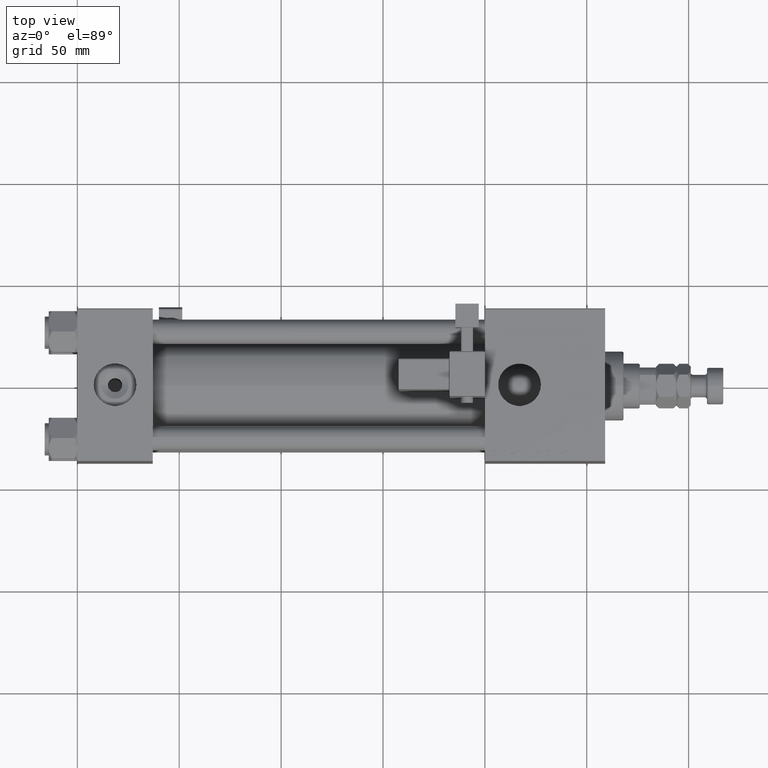
[diagram: clean part render]
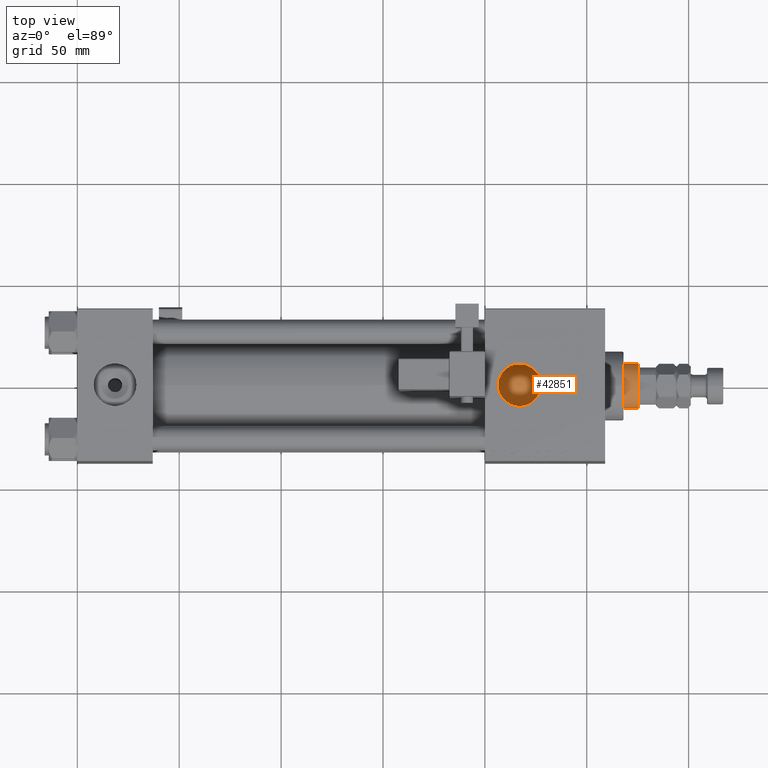
[diagram: same view with one face highlighted and labeled with its STEP entity id]
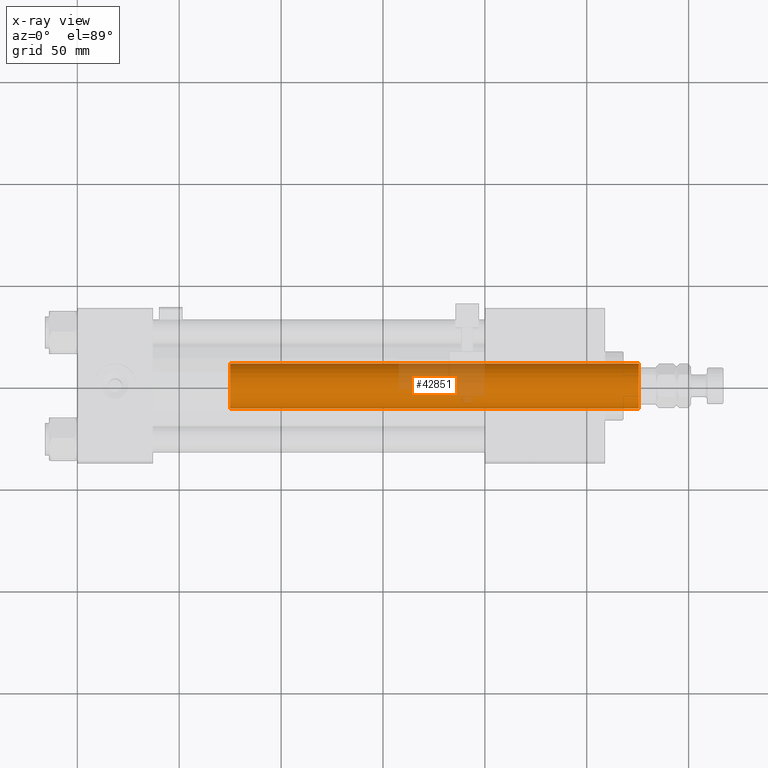
[diagram: x-ray of the same camera — body ghosted, the highlighted face saturated]
A machine part, top view. The second image highlights one B-rep face of the part: STEP entity #42851.
The next image is the same camera in x-ray: the body ghosted, the highlighted face saturated — about 14% of this face is hidden behind the body in this view.
In plain terms, the highlighted cylindrical surface (edge-blend (fillet) strip) has radius 11 mm, axis along (-1, 0, 0).
Its self-contained STEP definition (entity closure, byte-faithful):
#896 = CIRCLE ( 'NONE', #32658, 11.00000000000000000 ) ;
#1499 = CARTESIAN_POINT ( 'NONE',  ( 0.000000000000000000, 0.000000000000000000, 239.0000000000000284 ) ) ;
#3254 = CARTESIAN_POINT ( 'NONE',  ( -11.00000000000000000, 0.000000000000000000, 239.0000000000000284 ) ) ;
#3738 = CARTESIAN_POINT ( 'NONE',  ( 0.000000000000000000, 0.000000000000000000, 38.00000000000000000 ) ) ;
#6868 = VERTEX_POINT ( 'NONE', #26942 ) ;
#6983 = CARTESIAN_POINT ( 'NONE',  ( 11.00000000000000000, 1.347111479062088405E-15, 238.5000000000000853 ) ) ;
#7435 = DIRECTION ( 'NONE',  ( 1.000000000000000000, 0.000000000000000000, 0.000000000000000000 ) ) ;
#7513 = CARTESIAN_POINT ( 'NONE',  ( 11.00000000000000000, 1.347111479062088405E-15, 38.00000000000000000 ) ) ;
#8065 = ORIENTED_EDGE ( 'NONE', *, *, #35915, .T. ) ;
#11364 = EDGE_CURVE ( 'NONE', #41627, #6868, #25689, .T. ) ;
#13142 = EDGE_CURVE ( 'NONE', #6868, #39511, #896, .T. ) ;
#17711 = CARTESIAN_POINT ( 'NONE',  ( 11.00000000000000000, 1.347111479062088405E-15, 239.0000000000000284 ) ) ;
#17985 = DIRECTION ( 'NONE',  ( -1.000000000000000000, 0.000000000000000000, 0.000000000000000000 ) ) ;
#18812 = DIRECTION ( 'NONE',  ( -0.000000000000000000, -0.000000000000000000, -1.000000000000000000 ) ) ;
#21054 = DIRECTION ( 'NONE',  ( 0.000000000000000000, 0.000000000000000000, 1.000000000000000000 ) ) ;
#22243 = DIRECTION ( 'NONE',  ( -0.000000000000000000, -0.000000000000000000, -1.000000000000000000 ) ) ;
#22522 = FACE_OUTER_BOUND ( 'NONE', #40708, .T. ) ;
#22628 = CARTESIAN_POINT ( 'NONE',  ( -11.00000000000000000, 0.000000000000000000, 238.5000000000000853 ) ) ;
#22790 = CIRCLE ( 'NONE', #53759, 11.00000000000000000 ) ;
#23901 = EDGE_CURVE ( 'NONE', #40896, #39511, #35348, .T. ) ;
#25689 = LINE ( 'NONE', #3254, #40783 ) ;
#26693 = AXIS2_PLACEMENT_3D ( 'NONE', #1499, #18812, #17985 ) ;
#26942 = CARTESIAN_POINT ( 'NONE',  ( -11.00000000000000000, 0.000000000000000000, 38.00000000000000000 ) ) ;
#28746 = ORIENTED_EDGE ( 'NONE', *, *, #11364, .T. ) ;
#29122 = DIRECTION ( 'NONE',  ( -0.000000000000000000, -0.000000000000000000, -1.000000000000000000 ) ) ;
#29882 = ORIENTED_EDGE ( 'NONE', *, *, #23901, .F. ) ;
#32658 = AXIS2_PLACEMENT_3D ( 'NONE', #3738, #21054, #7435 ) ;
#35348 = LINE ( 'NONE', #17711, #36985 ) ;
#35780 = ORIENTED_EDGE ( 'NONE', *, *, #13142, .T. ) ;
#35889 = CYLINDRICAL_SURFACE ( 'NONE', #26693, 11.00000000000000000 ) ;
#35915 = EDGE_CURVE ( 'NONE', #40896, #41627, #22790, .T. ) ;
#36985 = VECTOR ( 'NONE', #22243, 1000.000000000000000 ) ;
#39511 = VERTEX_POINT ( 'NONE', #7513 ) ;
#40708 = EDGE_LOOP ( 'NONE', ( #29882, #8065, #28746, #35780 ) ) ;
#40783 = VECTOR ( 'NONE', #29122, 1000.000000000000000 ) ;
#40896 = VERTEX_POINT ( 'NONE', #6983 ) ;
#41627 = VERTEX_POINT ( 'NONE', #22628 ) ;
#41662 = CARTESIAN_POINT ( 'NONE',  ( 0.000000000000000000, 0.000000000000000000, 238.5000000000000853 ) ) ;
#42851 = ADVANCED_FACE ( 'NONE', ( #22522 ), #35889, .T. ) ;
#45675 = DIRECTION ( 'NONE',  ( 0.000000000000000000, 0.000000000000000000, -1.000000000000000000 ) ) ;
#53759 = AXIS2_PLACEMENT_3D ( 'NONE', #41662, #45675, #54502 ) ;
#54502 = DIRECTION ( 'NONE',  ( 1.000000000000000000, 0.000000000000000000, 0.000000000000000000 ) ) ;